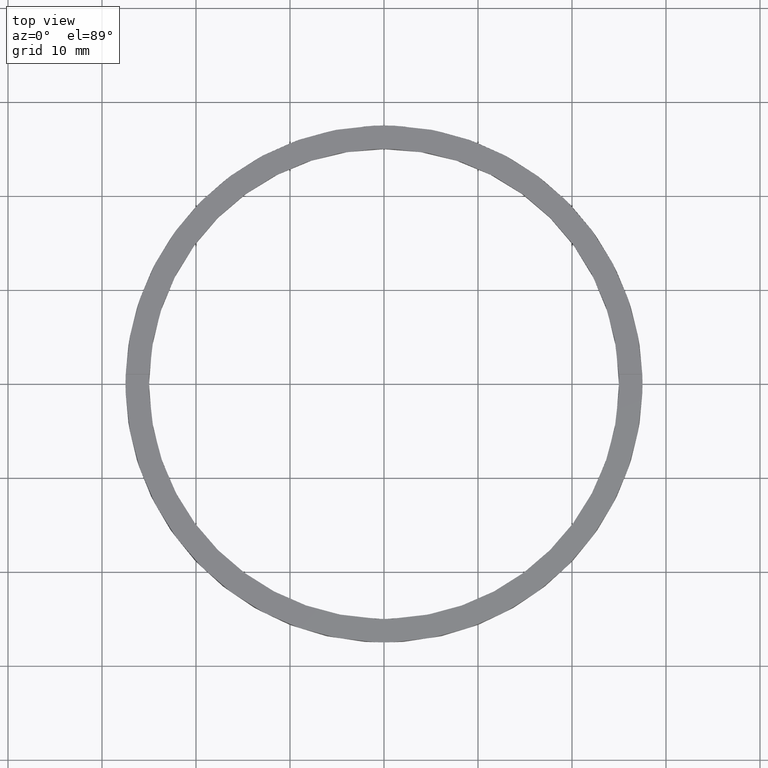
[diagram: clean part render]
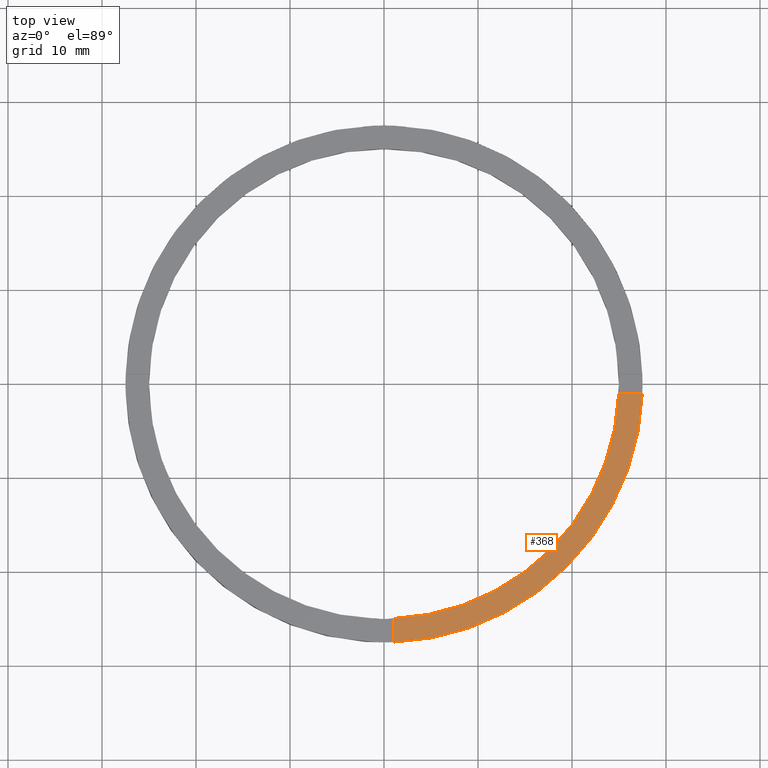
[diagram: same view with one face highlighted and labeled with its STEP entity id]
A machine part, top view. The second image highlights one B-rep face of the part: STEP entity #368.
In plain terms, the highlighted planar face has unit normal (0, 0, 1).
Its self-contained STEP definition (entity closure, byte-faithful):
#38 = AXIS2_PLACEMENT_3D ( 'NONE', #448, #484, #585 ) ;
#43 = PLANE ( 'NONE',  #294 ) ;
#53 = CARTESIAN_POINT ( 'NONE',  ( 0.9999999999998389066, -17.50000000000018119, 2.500000000000000000 ) ) ;
#102 = CARTESIAN_POINT ( 'NONE',  ( 0.000000000000000000, 0.000000000000000000, 2.500000000000000000 ) ) ;
#126 = VERTEX_POINT ( 'NONE', #373 ) ;
#131 = ORIENTED_EDGE ( 'NONE', *, *, #389, .F. ) ;
#145 = CARTESIAN_POINT ( 'NONE',  ( 0.000000000000000000, 0.000000000000000000, 2.500000000000000000 ) ) ;
#160 = LINE ( 'NONE', #53, #671 ) ;
#165 = VERTEX_POINT ( 'NONE', #303 ) ;
#189 = DIRECTION ( 'NONE',  ( -1.301042606982605567E-16, 1.000000000000000000, -0.000000000000000000 ) ) ;
#206 = DIRECTION ( 'NONE',  ( 1.000000000000000000, 0.000000000000000000, 0.000000000000000000 ) ) ;
#235 = CIRCLE ( 'NONE', #564, 27.50000000000000000 ) ;
#294 = AXIS2_PLACEMENT_3D ( 'NONE', #102, #632, #357 ) ;
#303 = CARTESIAN_POINT ( 'NONE',  ( 24.97999199359358968, -1.000000000000157208, 2.500000000000000000 ) ) ;
#304 = EDGE_CURVE ( 'NONE', #727, #165, #578, .T. ) ;
#348 = DIRECTION ( 'NONE',  ( 1.000000000000000000, 4.336808689942018352E-17, 0.000000000000000000 ) ) ;
#357 = DIRECTION ( 'NONE',  ( 1.000000000000000000, 0.000000000000000000, -0.000000000000000000 ) ) ;
#368 = ADVANCED_FACE ( 'NONE', ( #430 ), #43, .T. ) ;
#373 = CARTESIAN_POINT ( 'NONE',  ( 27.48181216732258392, -1.000000000000157208, 2.500000000000000000 ) ) ;
#389 = EDGE_CURVE ( 'NONE', #698, #727, #160, .T. ) ;
#397 = ORIENTED_EDGE ( 'NONE', *, *, #627, .F. ) ;
#400 = DIRECTION ( 'NONE',  ( 0.000000000000000000, 0.000000000000000000, 1.000000000000000000 ) ) ;
#401 = ORIENTED_EDGE ( 'NONE', *, *, #304, .F. ) ;
#405 = CARTESIAN_POINT ( 'NONE',  ( 17.49999999999999645, -1.000000000000157430, 2.500000000000000000 ) ) ;
#427 = EDGE_LOOP ( 'NONE', ( #397, #401, #131, #730 ) ) ;
#430 = FACE_OUTER_BOUND ( 'NONE', #427, .T. ) ;
#448 = CARTESIAN_POINT ( 'NONE',  ( 0.000000000000000000, 0.000000000000000000, 2.500000000000000000 ) ) ;
#484 = DIRECTION ( 'NONE',  ( 0.000000000000000000, 0.000000000000000000, 1.000000000000000000 ) ) ;
#497 = VECTOR ( 'NONE', #348, 1000.000000000000000 ) ;
#507 = EDGE_CURVE ( 'NONE', #698, #126, #235, .T. ) ;
#526 = CARTESIAN_POINT ( 'NONE',  ( 0.9999999999998400169, -27.48181216732259458, 2.500000000000000000 ) ) ;
#564 = AXIS2_PLACEMENT_3D ( 'NONE', #145, #400, #206 ) ;
#578 = CIRCLE ( 'NONE', #38, 25.00000000000000000 ) ;
#580 = CARTESIAN_POINT ( 'NONE',  ( 0.9999999999998397948, -24.97999199359360034, 2.500000000000000000 ) ) ;
#585 = DIRECTION ( 'NONE',  ( 1.000000000000000000, 0.000000000000000000, 0.000000000000000000 ) ) ;
#627 = EDGE_CURVE ( 'NONE', #165, #126, #731, .T. ) ;
#632 = DIRECTION ( 'NONE',  ( 0.000000000000000000, 0.000000000000000000, 1.000000000000000000 ) ) ;
#671 = VECTOR ( 'NONE', #189, 1000.000000000000000 ) ;
#698 = VERTEX_POINT ( 'NONE', #526 ) ;
#727 = VERTEX_POINT ( 'NONE', #580 ) ;
#730 = ORIENTED_EDGE ( 'NONE', *, *, #507, .T. ) ;
#731 = LINE ( 'NONE', #405, #497 ) ;